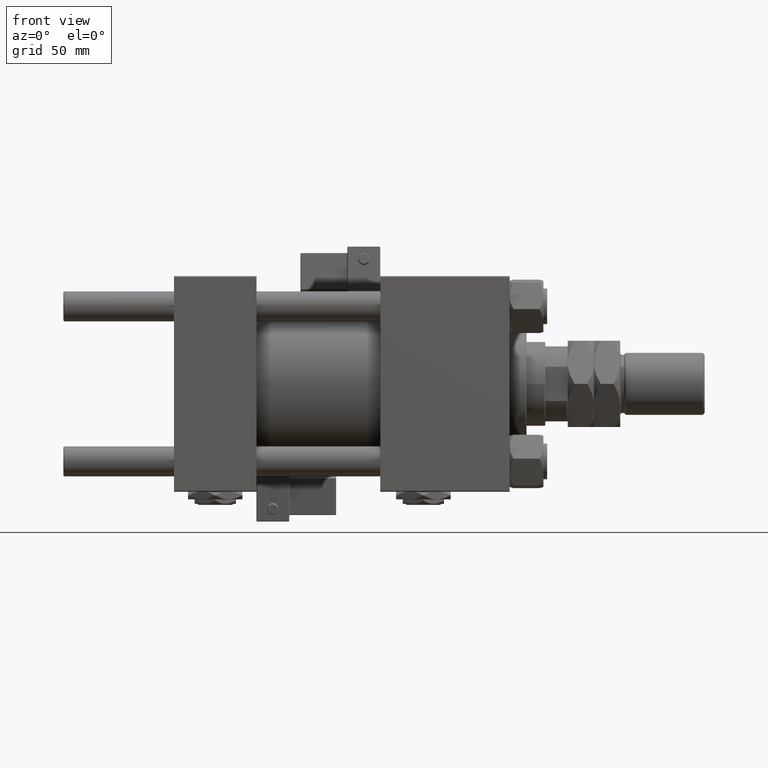
[diagram: clean part render]
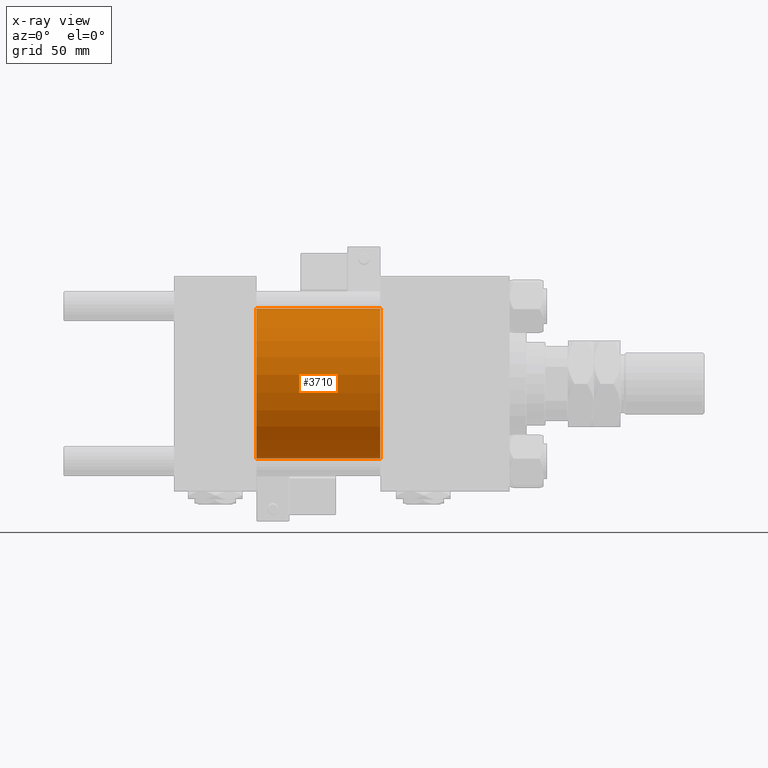
[diagram: x-ray — body ghosted, one internal face saturated and labeled with its STEP entity id]
A machine part, front view, then the same camera in x-ray: the body is ghosted and one INTERNAL B-rep face — a face not visible from any outside direction — is saturated and labeled: STEP entity #3710.
In plain terms, the highlighted cylindrical surface (partial cylindrical patch) has radius 40 mm, axis along (-1, -0, -0).
Its self-contained STEP definition (entity closure, byte-faithful):
#2655 = VECTOR ( 'NONE', #15528, 1000.000000000000000 ) ;
#3710 = ADVANCED_FACE ( 'NONE', ( #55256 ), #25374, .F. ) ;
#4532 = EDGE_CURVE ( 'NONE', #35599, #52177, #42541, .T. ) ;
#6208 = ORIENTED_EDGE ( 'NONE', *, *, #48186, .F. ) ;
#9216 = CIRCLE ( 'NONE', #53758, 40.00000000000000000 ) ;
#11906 = CARTESIAN_POINT ( 'NONE',  ( 44.00000000000000000, 4.898587196589413026E-15, -40.00000000000000000 ) ) ;
#13405 = VECTOR ( 'NONE', #32699, 1000.000000000000000 ) ;
#13608 = ORIENTED_EDGE ( 'NONE', *, *, #20930, .F. ) ;
#14151 = CARTESIAN_POINT ( 'NONE',  ( 44.00000000000000000, 0.000000000000000000, 0.000000000000000000 ) ) ;
#15528 = DIRECTION ( 'NONE',  ( -1.000000000000000000, -0.000000000000000000, -0.000000000000000000 ) ) ;
#16272 = CARTESIAN_POINT ( 'NONE',  ( 110.0000000000000000, 0.000000000000000000, 0.000000000000000000 ) ) ;
#18512 = VERTEX_POINT ( 'NONE', #11906 ) ;
#18715 = DIRECTION ( 'NONE',  ( 0.000000000000000000, 0.000000000000000000, -1.000000000000000000 ) ) ;
#20375 = VERTEX_POINT ( 'NONE', #46740 ) ;
#20930 = EDGE_CURVE ( 'NONE', #20375, #18512, #9216, .T. ) ;
#23554 = ORIENTED_EDGE ( 'NONE', *, *, #4532, .T. ) ;
#25374 = CYLINDRICAL_SURFACE ( 'NONE', #50689, 40.00000000000000000 ) ;
#26768 = ORIENTED_EDGE ( 'NONE', *, *, #54909, .T. ) ;
#31244 = CARTESIAN_POINT ( 'NONE',  ( 110.0000000000000000, 0.000000000000000000, 0.000000000000000000 ) ) ;
#32699 = DIRECTION ( 'NONE',  ( -1.000000000000000000, -0.000000000000000000, -0.000000000000000000 ) ) ;
#33338 = CARTESIAN_POINT ( 'NONE',  ( 110.0000000000000000, 4.898587196589413026E-15, -40.00000000000000000 ) ) ;
#34340 = AXIS2_PLACEMENT_3D ( 'NONE', #31244, #40352, #18715 ) ;
#35599 = VERTEX_POINT ( 'NONE', #45646 ) ;
#36392 = EDGE_LOOP ( 'NONE', ( #23554, #26768, #13608, #6208 ) ) ;
#40074 = DIRECTION ( 'NONE',  ( 1.000000000000000000, 0.000000000000000000, 0.000000000000000000 ) ) ;
#40089 = CARTESIAN_POINT ( 'NONE',  ( 110.0000000000000000, 0.000000000000000000, 40.00000000000000000 ) ) ;
#40352 = DIRECTION ( 'NONE',  ( 1.000000000000000000, 0.000000000000000000, 0.000000000000000000 ) ) ;
#41707 = LINE ( 'NONE', #50534, #2655 ) ;
#42541 = CIRCLE ( 'NONE', #34340, 40.00000000000000000 ) ;
#42723 = DIRECTION ( 'NONE',  ( 0.000000000000000000, 0.000000000000000000, 1.000000000000000000 ) ) ;
#44354 = LINE ( 'NONE', #40089, #13405 ) ;
#45646 = CARTESIAN_POINT ( 'NONE',  ( 110.0000000000000000, 0.000000000000000000, 40.00000000000000000 ) ) ;
#46731 = DIRECTION ( 'NONE',  ( -1.000000000000000000, -0.000000000000000000, -0.000000000000000000 ) ) ;
#46740 = CARTESIAN_POINT ( 'NONE',  ( 44.00000000000000000, 0.000000000000000000, 40.00000000000000000 ) ) ;
#48186 = EDGE_CURVE ( 'NONE', #35599, #20375, #44354, .T. ) ;
#49746 = DIRECTION ( 'NONE',  ( 0.000000000000000000, 0.000000000000000000, -1.000000000000000000 ) ) ;
#50534 = CARTESIAN_POINT ( 'NONE',  ( 110.0000000000000000, 4.898587196589413026E-15, -40.00000000000000000 ) ) ;
#50689 = AXIS2_PLACEMENT_3D ( 'NONE', #16272, #46731, #42723 ) ;
#52177 = VERTEX_POINT ( 'NONE', #33338 ) ;
#53758 = AXIS2_PLACEMENT_3D ( 'NONE', #14151, #40074, #49746 ) ;
#54909 = EDGE_CURVE ( 'NONE', #52177, #18512, #41707, .T. ) ;
#55256 = FACE_OUTER_BOUND ( 'NONE', #36392, .T. ) ;